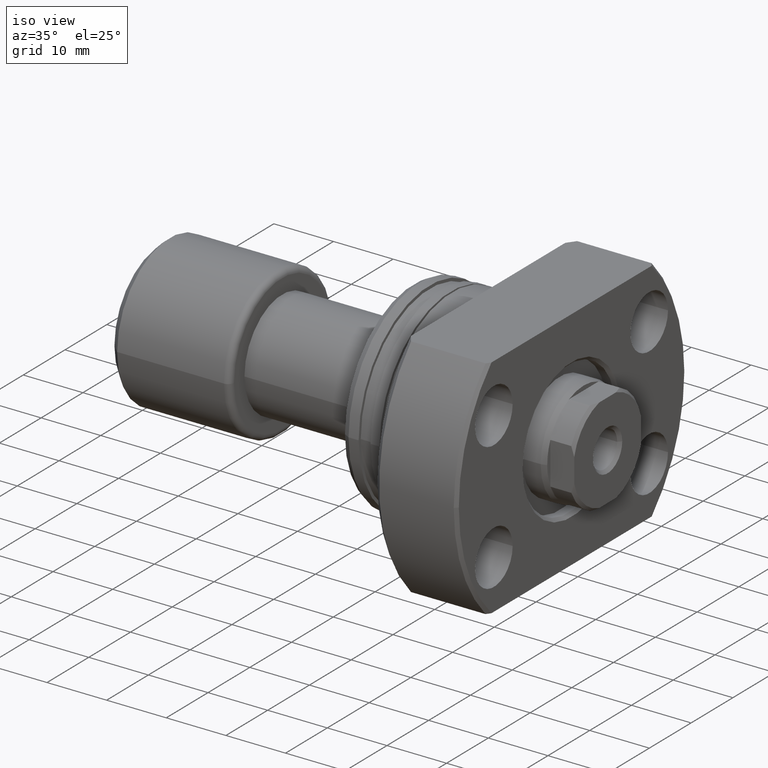
[diagram: clean part render]
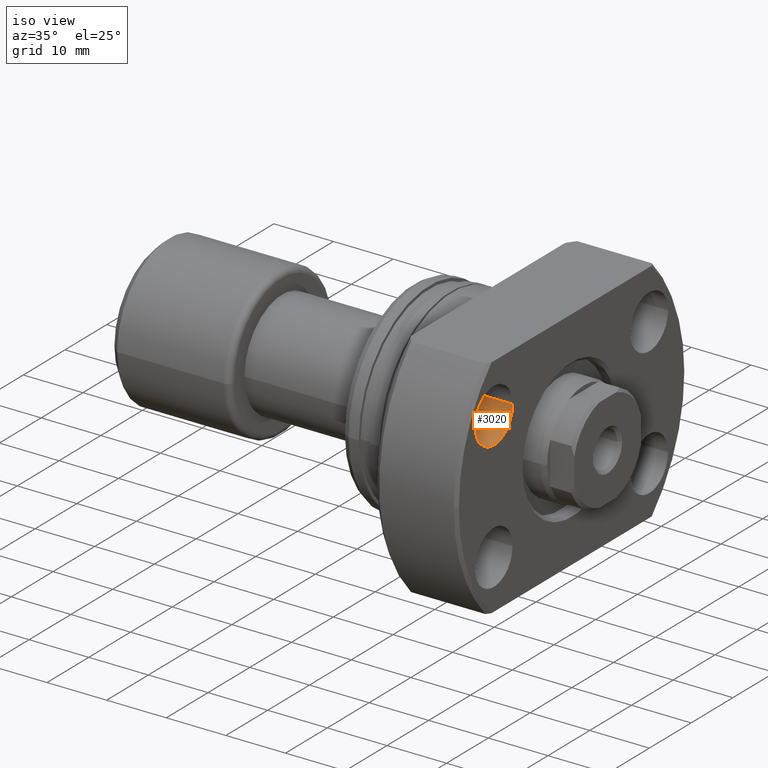
[diagram: same view with one face highlighted and labeled with its STEP entity id]
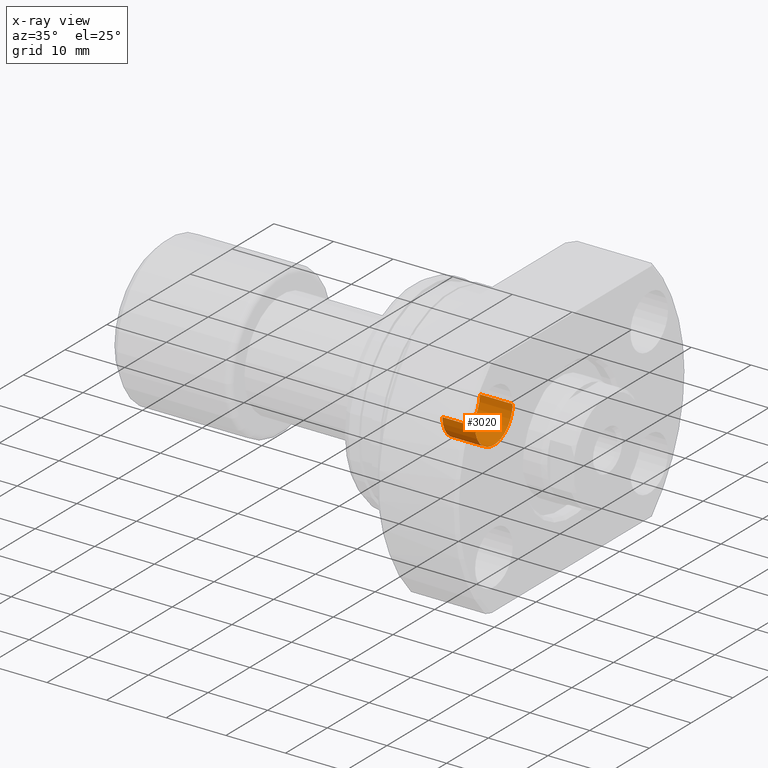
[diagram: x-ray of the same camera — body ghosted, the highlighted face saturated]
A machine part, iso view. The second image highlights one B-rep face of the part: STEP entity #3020.
The next image is the same camera in x-ray: the body ghosted, the highlighted face saturated — about 0% of this face is hidden behind the body in this view.
In plain terms, the highlighted cylindrical surface (edge-blend (fillet) strip) has radius 4.5 mm, axis along (1, -0, 0).
Its self-contained STEP definition (entity closure, byte-faithful):
#14 = DIRECTION ( 'NONE',  ( 2.852656382717415620E-14, 1.000000000000000000, 0.000000000000000000 ) ) ;
#69 = ORIENTED_EDGE ( 'NONE', *, *, #2545, .F. ) ;
#112 = LINE ( 'NONE', #139, #1767 ) ;
#131 = EDGE_CURVE ( 'NONE', #1371, #900, #112, .T. ) ;
#139 = CARTESIAN_POINT ( 'NONE',  ( 20.99999999999959144, -14.10000000000060894, 10.75000000000000000 ) ) ;
#175 = EDGE_LOOP ( 'NONE', ( #69, #919, #2321, #754 ) ) ;
#264 = CARTESIAN_POINT ( 'NONE',  ( 20.99999999999946354, -18.60000000000060894, 10.75000000000000000 ) ) ;
#312 = AXIS2_PLACEMENT_3D ( 'NONE', #749, #2988, #2010 ) ;
#411 = AXIS2_PLACEMENT_3D ( 'NONE', #264, #2268, #14 ) ;
#500 = LINE ( 'NONE', #1268, #1079 ) ;
#628 = AXIS2_PLACEMENT_3D ( 'NONE', #929, #2682, #2390 ) ;
#686 = EDGE_CURVE ( 'NONE', #2948, #859, #500, .T. ) ;
#734 = DIRECTION ( 'NONE',  ( 1.000000000000000000, -2.886466111666351885E-14, -0.000000000000000000 ) ) ;
#749 = CARTESIAN_POINT ( 'NONE',  ( 20.99999999999946354, -18.60000000000060894, 10.75000000000000000 ) ) ;
#754 = ORIENTED_EDGE ( 'NONE', *, *, #131, .F. ) ;
#813 = CARTESIAN_POINT ( 'NONE',  ( 26.49999999999959499, -14.10000000000076881, 10.75000000000000000 ) ) ;
#859 = VERTEX_POINT ( 'NONE', #1836 ) ;
#900 = VERTEX_POINT ( 'NONE', #813 ) ;
#919 = ORIENTED_EDGE ( 'NONE', *, *, #686, .T. ) ;
#929 = CARTESIAN_POINT ( 'NONE',  ( 26.49999999999946354, -18.60000000000076881, 10.75000000000000000 ) ) ;
#1079 = VECTOR ( 'NONE', #734, 1000.000000000000000 ) ;
#1238 = CARTESIAN_POINT ( 'NONE',  ( 20.99999999999933564, -23.10000000000060894, 10.75000000000000000 ) ) ;
#1268 = CARTESIAN_POINT ( 'NONE',  ( 20.99999999999933564, -23.10000000000060894, 10.75000000000000000 ) ) ;
#1371 = VERTEX_POINT ( 'NONE', #2680 ) ;
#1767 = VECTOR ( 'NONE', #2656, 1000.000000000000000 ) ;
#1836 = CARTESIAN_POINT ( 'NONE',  ( 26.49999999999933564, -23.10000000000076881, 10.75000000000000000 ) ) ;
#2001 = CYLINDRICAL_SURFACE ( 'NONE', #312, 4.500000000000000888 ) ;
#2010 = DIRECTION ( 'NONE',  ( 2.852656382717415620E-14, 1.000000000000000000, 0.000000000000000000 ) ) ;
#2195 = FACE_OUTER_BOUND ( 'NONE', #175, .T. ) ;
#2268 = DIRECTION ( 'NONE',  ( 1.000000000000000000, -2.883293662278287419E-14, -3.155443620884046521E-30 ) ) ;
#2321 = ORIENTED_EDGE ( 'NONE', *, *, #2885, .T. ) ;
#2352 = CIRCLE ( 'NONE', #628, 4.500000000000000888 ) ;
#2390 = DIRECTION ( 'NONE',  ( 2.852656382717415620E-14, 1.000000000000000000, 0.000000000000000000 ) ) ;
#2545 = EDGE_CURVE ( 'NONE', #2948, #1371, #3220, .T. ) ;
#2656 = DIRECTION ( 'NONE',  ( 1.000000000000000000, -2.886466111666351885E-14, -0.000000000000000000 ) ) ;
#2680 = CARTESIAN_POINT ( 'NONE',  ( 20.99999999999959144, -14.10000000000060894, 10.75000000000000000 ) ) ;
#2682 = DIRECTION ( 'NONE',  ( 1.000000000000000000, -2.883293662278287419E-14, -3.155443620884046521E-30 ) ) ;
#2885 = EDGE_CURVE ( 'NONE', #859, #900, #2352, .T. ) ;
#2948 = VERTEX_POINT ( 'NONE', #1238 ) ;
#2988 = DIRECTION ( 'NONE',  ( 1.000000000000000000, -2.886466111666351885E-14, -0.000000000000000000 ) ) ;
#3020 = ADVANCED_FACE ( 'NONE', ( #2195 ), #2001, .F. ) ;
#3220 = CIRCLE ( 'NONE', #411, 4.500000000000000888 ) ;